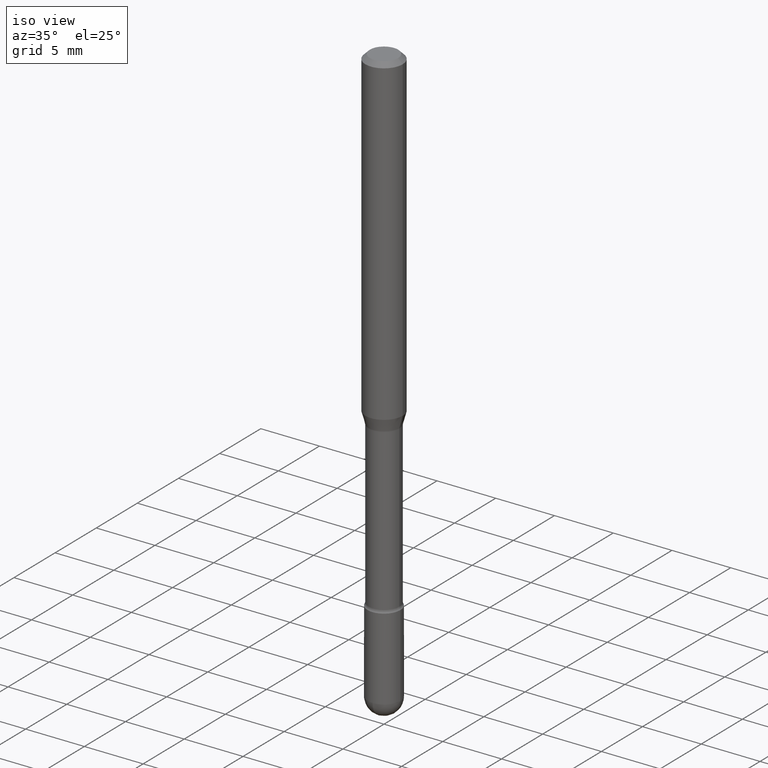
[diagram: clean part render]
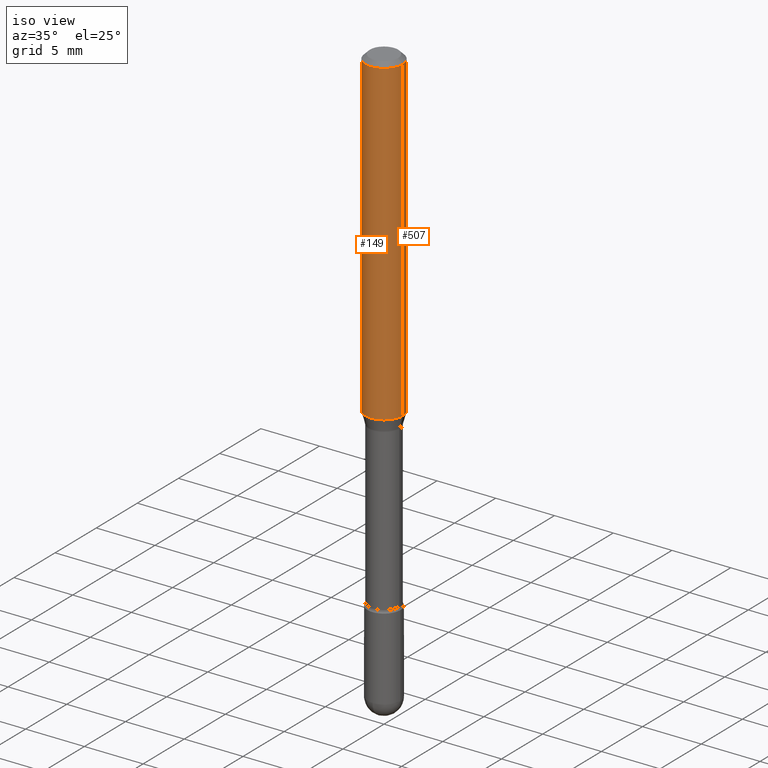
[diagram: same view with one multi-face feature highlighted, each face labeled with its STEP entity id]
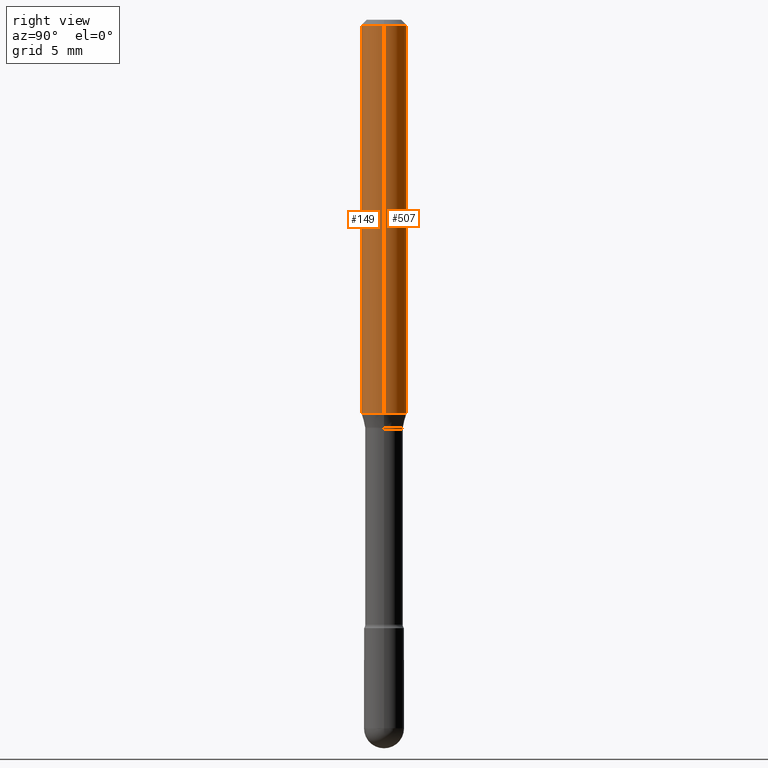
[diagram: same view with one multi-face feature highlighted, each face labeled with its STEP entity id]
A machine part, iso view. The highlighted faces form ONE feature: a constant-radius fillet chain: 2 tangent blend faces with common blend radius 1.5875 mm. The faces share edges in the B-rep.
A second angle (right view) of the same feature is appended — it is thin or edge-on in the first view.
Their STEP definitions:
[1] entity #507 (Cylinder):
#49 = CARTESIAN_POINT ( 'NONE',  ( -0.06250000000000000000, -3.325641723551655148E-15, -1.079693851278256123 ) ) ;
#52 = VECTOR ( 'NONE', #187, 39.37007874015748143 ) ;
#83 = VERTEX_POINT ( 'NONE', #49 ) ;
#111 = CARTESIAN_POINT ( 'NONE',  ( -0.06250000000000000000, -1.466962366892119806E-15, -0.01500000000000008271 ) ) ;
#134 = LINE ( 'NONE', #141, #52 ) ;
#141 = CARTESIAN_POINT ( 'NONE',  ( -0.06250000000000000000, 4.440892098500642925E-16, 4.780733988912429571E-16 ) ) ;
#143 = CARTESIAN_POINT ( 'NONE',  ( 0.06250000000000000000, -4.364351673553899931E-16, 4.780733988912490708E-16 ) ) ;
#163 = EDGE_CURVE ( 'NONE', #291, #347, #175, .T. ) ;
#170 = DIRECTION ( 'NONE',  ( -2.445468806185136597E-29, 3.491481338843145583E-15, 1.000000000000000000 ) ) ;
#175 = CIRCLE ( 'NONE', #318, 0.06250000000000000000 ) ;
#187 = DIRECTION ( 'NONE',  ( -2.445468806185136877E-29, 3.491481338843145188E-15, 1.000000000000000000 ) ) ;
#195 = DIRECTION ( 'NONE',  ( 1.000000000000000000, -6.982962677686266711E-15, 0.000000000000000000 ) ) ;
#202 = DIRECTION ( 'NONE',  ( -2.445468806185136597E-29, 3.491481338843145583E-15, 1.000000000000000000 ) ) ;
#241 = ORIENTED_EDGE ( 'NONE', *, *, #302, .T. ) ;
#244 = DIRECTION ( 'NONE',  ( -2.445468806185136877E-29, 3.491481338843145188E-15, 1.000000000000000000 ) ) ;
#255 = CARTESIAN_POINT ( 'NONE',  ( 0.06250000000000000000, -4.206166100757109434E-15, -1.079693851278256123 ) ) ;
#262 = EDGE_CURVE ( 'NONE', #83, #347, #134, .T. ) ;
#268 = DIRECTION ( 'NONE',  ( 1.000000000000000000, -6.982962677686262766E-15, 0.000000000000000000 ) ) ;
#270 = VECTOR ( 'NONE', #244, 39.37007874015748143 ) ;
#289 = CARTESIAN_POINT ( 'NONE',  ( 0.06250000000000000000, -4.888073874380391431E-16, -0.01500000000000008271 ) ) ;
#291 = VERTEX_POINT ( 'NONE', #289 ) ;
#302 = EDGE_CURVE ( 'NONE', #521, #83, #329, .T. ) ;
#318 = AXIS2_PLACEMENT_3D ( 'NONE', #433, #410, #195 ) ;
#329 = CIRCLE ( 'NONE', #402, 0.06250000000000000000 ) ;
#333 = ORIENTED_EDGE ( 'NONE', *, *, #262, .T. ) ;
#337 = EDGE_LOOP ( 'NONE', ( #241, #333, #341, #340 ) ) ;
#340 = ORIENTED_EDGE ( 'NONE', *, *, #421, .F. ) ;
#341 = ORIENTED_EDGE ( 'NONE', *, *, #163, .F. ) ;
#346 = DIRECTION ( 'NONE',  ( 1.000000000000000000, -6.982962677686266711E-15, 4.852736867747366207E-29 ) ) ;
#347 = VERTEX_POINT ( 'NONE', #111 ) ;
#368 = CARTESIAN_POINT ( 'NONE',  ( 2.640357633530869314E-29, -3.769730933401716976E-15, -1.079693851278256123 ) ) ;
#402 = AXIS2_PLACEMENT_3D ( 'NONE', #368, #202, #268 ) ;
#410 = DIRECTION ( 'NONE',  ( -2.445468806185136597E-29, 3.491481338843145583E-15, 1.000000000000000000 ) ) ;
#421 = EDGE_CURVE ( 'NONE', #521, #291, #449, .T. ) ;
#433 = CARTESIAN_POINT ( 'NONE',  ( 3.668203209277725232E-31, -5.237222008264747365E-17, -0.01500000000000008271 ) ) ;
#449 = LINE ( 'NONE', #143, #270 ) ;
#468 = FACE_OUTER_BOUND ( 'NONE', #337, .T. ) ;
#470 = CARTESIAN_POINT ( 'NONE',  ( -1.169113584055446105E-44, 1.669184350826100908E-30, 4.780733988912460139E-16 ) ) ;
#507 = ADVANCED_FACE ( 'NONE', ( #468 ), #508, .T. ) ;
#508 = CYLINDRICAL_SURFACE ( 'NONE', #510, 0.06250000000000000000 ) ;
#510 = AXIS2_PLACEMENT_3D ( 'NONE', #470, #170, #346 ) ;
#521 = VERTEX_POINT ( 'NONE', #255 ) ;
[2] entity #149 (Cylinder):
#45 = ORIENTED_EDGE ( 'NONE', *, *, #421, .T. ) ;
#49 = CARTESIAN_POINT ( 'NONE',  ( -0.06250000000000000000, -3.325641723551655148E-15, -1.079693851278256123 ) ) ;
#52 = VECTOR ( 'NONE', #187, 39.37007874015748143 ) ;
#54 = DIRECTION ( 'NONE',  ( -2.445468806185136597E-29, 3.491481338843145583E-15, 1.000000000000000000 ) ) ;
#58 = CARTESIAN_POINT ( 'NONE',  ( 3.668203209277725232E-31, -5.237222008264747365E-17, -0.01500000000000008271 ) ) ;
#83 = VERTEX_POINT ( 'NONE', #49 ) ;
#111 = CARTESIAN_POINT ( 'NONE',  ( -0.06250000000000000000, -1.466962366892119806E-15, -0.01500000000000008271 ) ) ;
#122 = DIRECTION ( 'NONE',  ( -2.445468806185136597E-29, 3.491481338843145583E-15, 1.000000000000000000 ) ) ;
#125 = ORIENTED_EDGE ( 'NONE', *, *, #236, .F. ) ;
#134 = LINE ( 'NONE', #141, #52 ) ;
#141 = CARTESIAN_POINT ( 'NONE',  ( -0.06250000000000000000, 4.440892098500642925E-16, 4.780733988912429571E-16 ) ) ;
#143 = CARTESIAN_POINT ( 'NONE',  ( 0.06250000000000000000, -4.364351673553899931E-16, 4.780733988912490708E-16 ) ) ;
#149 = ADVANCED_FACE ( 'NONE', ( #224 ), #353, .T. ) ;
#187 = DIRECTION ( 'NONE',  ( -2.445468806185136877E-29, 3.491481338843145188E-15, 1.000000000000000000 ) ) ;
#198 = AXIS2_PLACEMENT_3D ( 'NONE', #58, #54, #467 ) ;
#214 = AXIS2_PLACEMENT_3D ( 'NONE', #511, #122, #425 ) ;
#224 = FACE_OUTER_BOUND ( 'NONE', #540, .T. ) ;
#236 = EDGE_CURVE ( 'NONE', #347, #291, #381, .T. ) ;
#244 = DIRECTION ( 'NONE',  ( -2.445468806185136877E-29, 3.491481338843145188E-15, 1.000000000000000000 ) ) ;
#255 = CARTESIAN_POINT ( 'NONE',  ( 0.06250000000000000000, -4.206166100757109434E-15, -1.079693851278256123 ) ) ;
#256 = ORIENTED_EDGE ( 'NONE', *, *, #262, .F. ) ;
#262 = EDGE_CURVE ( 'NONE', #83, #347, #134, .T. ) ;
#264 = ORIENTED_EDGE ( 'NONE', *, *, #338, .T. ) ;
#270 = VECTOR ( 'NONE', #244, 39.37007874015748143 ) ;
#289 = CARTESIAN_POINT ( 'NONE',  ( 0.06250000000000000000, -4.888073874380391431E-16, -0.01500000000000008271 ) ) ;
#291 = VERTEX_POINT ( 'NONE', #289 ) ;
#321 = CARTESIAN_POINT ( 'NONE',  ( -1.169113584055446105E-44, 1.669184350826100908E-30, 4.780733988912460139E-16 ) ) ;
#338 = EDGE_CURVE ( 'NONE', #83, #521, #530, .T. ) ;
#339 = DIRECTION ( 'NONE',  ( 1.000000000000000000, -6.982962677686266711E-15, 4.852736867747366207E-29 ) ) ;
#347 = VERTEX_POINT ( 'NONE', #111 ) ;
#353 = CYLINDRICAL_SURFACE ( 'NONE', #472, 0.06250000000000000000 ) ;
#381 = CIRCLE ( 'NONE', #198, 0.06250000000000000000 ) ;
#393 = DIRECTION ( 'NONE',  ( -2.445468806185136597E-29, 3.491481338843145583E-15, 1.000000000000000000 ) ) ;
#421 = EDGE_CURVE ( 'NONE', #521, #291, #449, .T. ) ;
#425 = DIRECTION ( 'NONE',  ( 1.000000000000000000, -6.982962677686262766E-15, 0.000000000000000000 ) ) ;
#449 = LINE ( 'NONE', #143, #270 ) ;
#467 = DIRECTION ( 'NONE',  ( 1.000000000000000000, -6.982962677686266711E-15, 0.000000000000000000 ) ) ;
#472 = AXIS2_PLACEMENT_3D ( 'NONE', #321, #393, #339 ) ;
#511 = CARTESIAN_POINT ( 'NONE',  ( 2.640357633530869314E-29, -3.769730933401716976E-15, -1.079693851278256123 ) ) ;
#521 = VERTEX_POINT ( 'NONE', #255 ) ;
#530 = CIRCLE ( 'NONE', #214, 0.06250000000000000000 ) ;
#540 = EDGE_LOOP ( 'NONE', ( #256, #264, #45, #125 ) ) ;